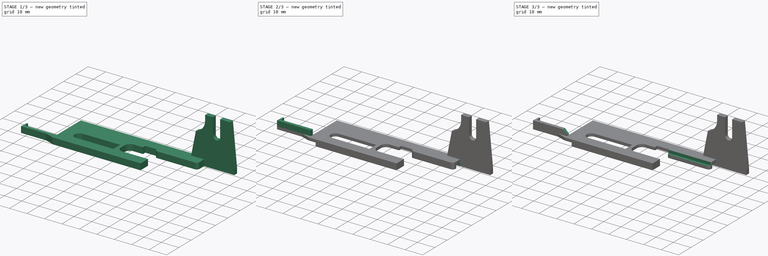
[diagram: build sequence overview — one tinted view per stage of 3, left to right]
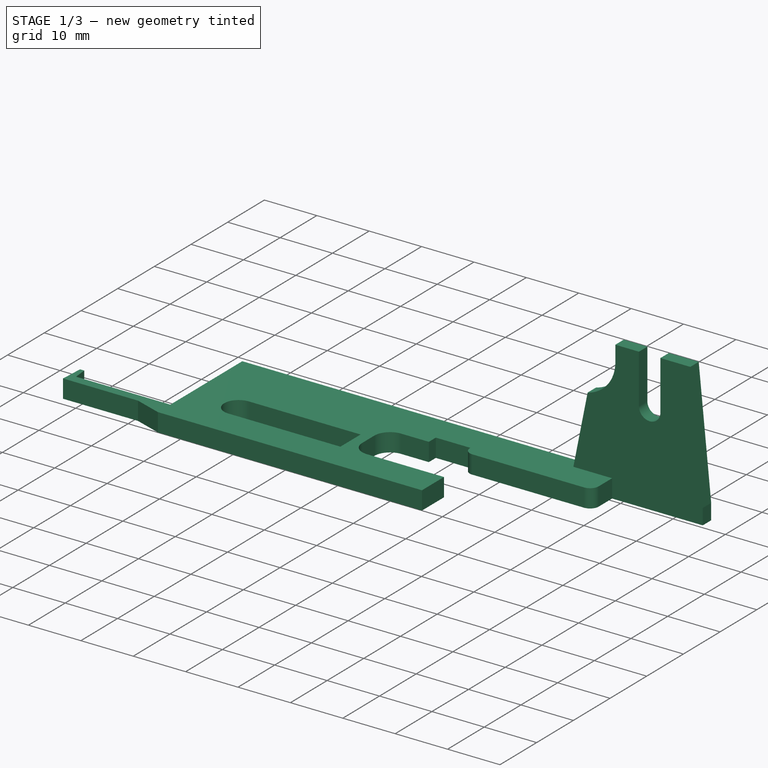
[diagram: stage 1 of 3 — iso view after this stage's code; geometry added in this stage tinted green]
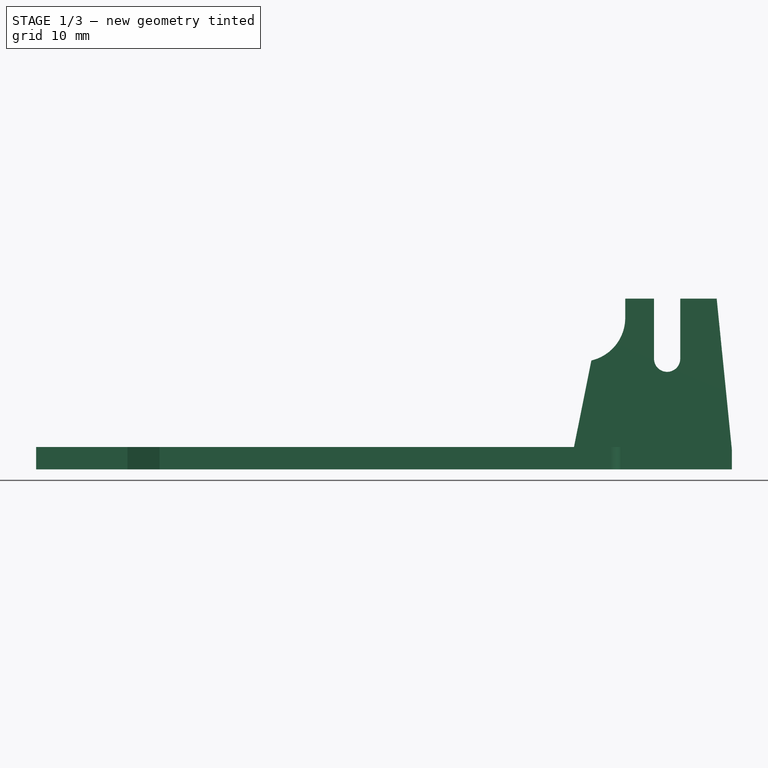
[diagram: stage 1 of 3 — front view after this stage's code; geometry added in this stage tinted green]
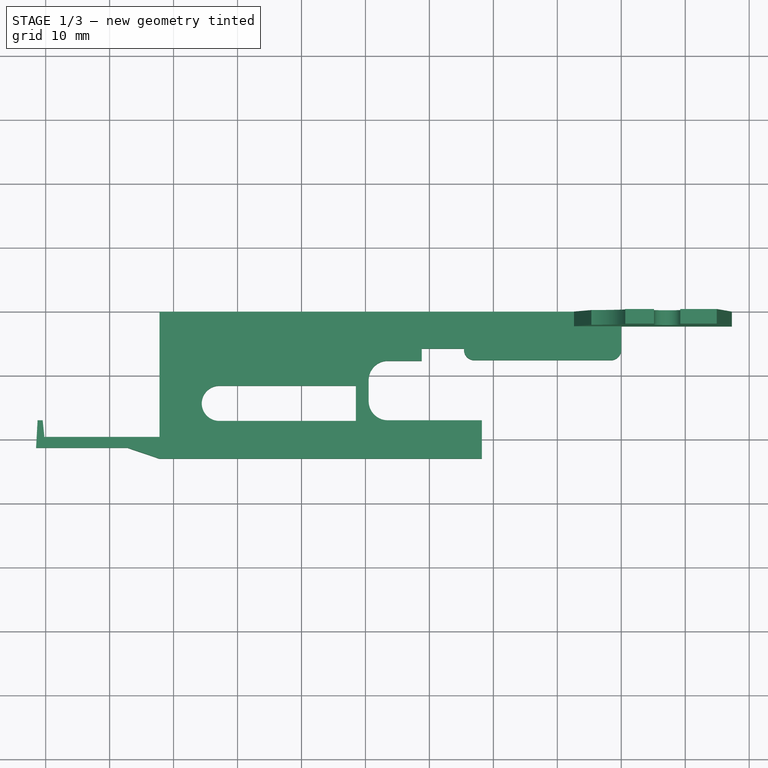
[diagram: stage 1 of 3 — top view after this stage's code; geometry added in this stage tinted green]
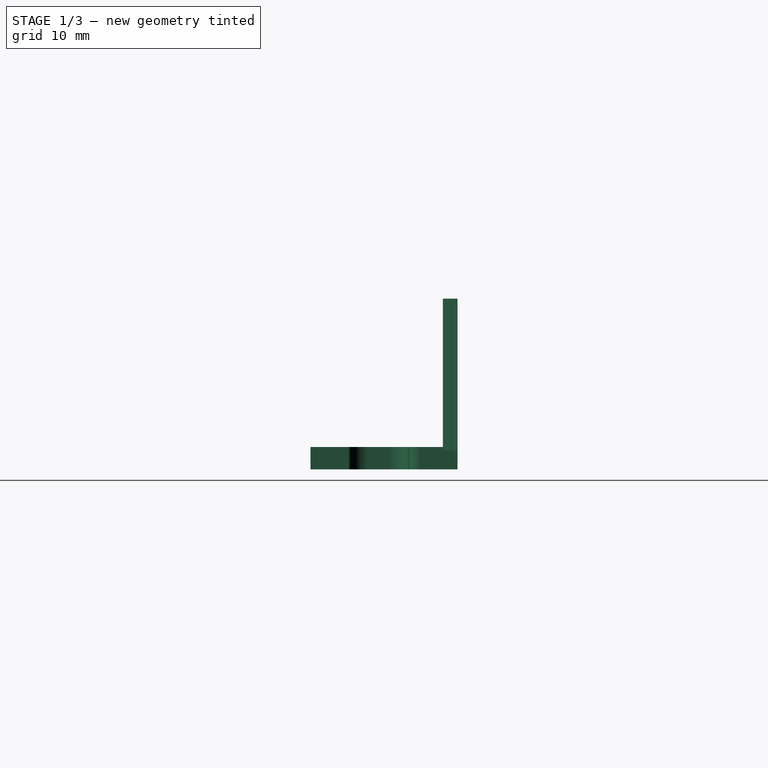
[diagram: stage 1 of 3 — right view after this stage's code; geometry added in this stage tinted green]
FCSTD DOCUMENT  (FreeCAD 0.19R23578 (Git))
Label: part1
License: All rights reserved
LicenseURL: http://en.wikipedia.org/wiki/All_rights_reserved
objects: Sketcher::SketchObject×5, PartDesign::Pad×3, PartDesign::Pocket×2, PartDesign::Chamfer×1, PartDesign::Body×1
note: 18 computed .brp shape members not serialized (recipe doc carries the construction recipe); baked Part::Feature solids carry a one-line shape summary decoded from their .brp

FEATURE [Sketcher::SketchObject] Sketch
  MapMode = 5
  Support = -> [XY_Plane]
  expr: Constraints[74] = 3.3 / 2
  expr: Constraints[73] = 3.3 / 2
  sketch-geometry (28):
    g0: LineSegment StartX=0 StartY=0 StartZ=0 EndX=-72.2 EndY=0 EndZ=0
    g1: LineSegment StartX=-72.2 StartY=0 StartZ=0 EndX=-72.2 EndY=-19.6 EndZ=0
    g2: LineSegment StartX=-72.2 StartY=-19.6 StartZ=0 EndX=-90.2076 EndY=-19.6 EndZ=0
    g3: LineSegment StartX=-91.2663 StartY=-17 StartZ=0 EndX=-91.5 EndY=-21.3 EndZ=0
    g4: LineSegment StartX=-91.5 StartY=-21.3 StartZ=0 EndX=-77.2 EndY=-21.3 EndZ=0
    g5: LineSegment StartX=-77.2 StartY=-21.3 StartZ=0 EndX=-72.2 EndY=-23 EndZ=0
    g6: LineSegment StartX=-72.2 StartY=-23 StartZ=0 EndX=-21.8 EndY=-23 EndZ=0
    g7: LineSegment StartX=-21.8 StartY=-23 StartZ=0 EndX=-21.8 EndY=-17 EndZ=0
    g8: LineSegment StartX=-21.8 StartY=-17 StartZ=0 EndX=-36.5 EndY=-17 EndZ=0
    g9: LineSegment StartX=-39.5 StartY=-14 StartZ=0 EndX=-39.5 EndY=-10.7 EndZ=0
    g10: LineSegment StartX=-36.5 StartY=-7.7 StartZ=0 EndX=-31.2 EndY=-7.7 EndZ=0
    g11: LineSegment StartX=-31.2 StartY=-7.7 StartZ=0 EndX=-31.2 EndY=-5.8 EndZ=0
    g12: LineSegment StartX=-31.2 StartY=-5.8 StartZ=0 EndX=-24.6 EndY=-5.8 EndZ=0
    g13: LineSegment StartX=-24.6 StartY=-5.8 StartZ=0 EndX=-24.6 EndY=-5.95 EndZ=0
    g14: LineSegment StartX=-22.95 StartY=-7.6 StartZ=0 EndX=-1.65 EndY=-7.6 EndZ=0
    g15: LineSegment StartX=0 StartY=-5.95 StartZ=0 EndX=0 EndY=0 EndZ=0
    g16: ArcOfCircle CenterX=-36.5 CenterY=-14 CenterZ=0 NormalX=0 NormalY=0 NormalZ=1 AngleXU=0 Radius=3 StartAngle=3.14159 EndAngle=4.71239
    g17: ArcOfCircle CenterX=-36.5 CenterY=-10.7 CenterZ=0 NormalX=0 NormalY=0 NormalZ=1 AngleXU=0 Radius=3 StartAngle=1.5708 EndAngle=3.14159
    g18: ArcOfCircle CenterX=-22.95 CenterY=-5.95 CenterZ=0 NormalX=0 NormalY=0 NormalZ=1 AngleXU=0 Radius=1.65 StartAngle=3.14159 EndAngle=4.71239
    g19: ArcOfCircle CenterX=-1.65 CenterY=-5.95 CenterZ=0 NormalX=0 NormalY=0 NormalZ=1 AngleXU=0 Radius=1.65 StartAngle=4.71239 EndAngle=6.28319
    g20: GeomPoint X=-91.4076 Y=-19.6 Z=0
    g21: LineSegment StartX=-90.2076 StartY=-19.6 StartZ=0 EndX=-90.4663 EndY=-17 EndZ=0
    g22: LineSegment StartX=-90.4663 StartY=-17 StartZ=0 EndX=-91.2663 EndY=-17 EndZ=0
    g23: ArcOfCircle CenterX=-62.85 CenterY=-14.35 CenterZ=0 NormalX=0 NormalY=0 NormalZ=1 AngleXU=0 Radius=2.75 StartAngle=1.5708 EndAngle=4.71239
    g24: LineSegment StartX=-62.85 StartY=-11.6 StartZ=0 EndX=-41.5 EndY=-11.6 EndZ=0
    g25: LineSegment StartX=-41.5 StartY=-11.6 StartZ=0 EndX=-41.5 EndY=-17.1 EndZ=0
    g26: LineSegment StartX=-62.85 StartY=-17.1 StartZ=0 EndX=-41.5 EndY=-17.1 EndZ=0
    g27: GeomPoint X=-65.6 Y=-14.35 Z=0
  constraints (75):
    c: Coincident(g-1,g0)
    c: PointOnObject(g0,g-1)
    c: Coincident(g0,g1)
    c: Vertical(g1)
    c: Coincident(g1,g2)
    c: Horizontal(g2)
    c: Coincident(g3,g4)
    c: Horizontal(g4)
    c: Coincident(g4,g5)
    c: Coincident(g5,g6)
    c: Horizontal(g6)
    c: Coincident(g6,g7)
    c: Vertical(g7)
    c: Coincident(g7,g8)
    c: Horizontal(g8)
    c: Vertical(g9)
    c: Horizontal(g10)
    c: Coincident(g10,g11)
    c: Coincident(g11,g12)
    c: Horizontal(g12)
    c: Coincident(g12,g13)
    c: Horizontal(g14)
    c: Coincident(g15,g0)
    c: DistanceX(g0,g0) = 72.2
    c: Vertical(g11)
    c: Vertical(g13)
    c: DistanceY(g12,g0) = 5.8
    c: Tangent(g9,g16) = 1.5708
    c: Tangent(g8,g16) = 1.5708
    c: Tangent(g10,g17) = 1.5708
    c: Tangent(g9,g17) = 1.5708
    c: Tangent(g13,g18) = -1.5708
    c: Tangent(g14,g18) = -1.5708
    c: Tangent(g15,g19) = -1.5708
    c: Tangent(g14,g19) = -1.5708
    c: DistanceX(g0,g9) = 32.7
    c: DistanceX(g0,g11) = 41
    c: DistanceX(g11,g12) = 6.6
    c: PointOnObject(g15,g-2)
    c: DistanceY(g10,g-1) = 7.7
    c: DistanceY(g14,g-1) = 7.6
    c: DistanceY(g1,g-1) = 19.6
    c: DistanceY(g6,g-1) = 23
    c: DistanceY(g3,g3) = 4.3
    c: DistanceY(g3,g2) = 1.7
    c: DistanceX(g3,g6) = 69.7
    c: Vertical(g5,g1)
    c: DistanceX(g1,g7) = 50.4
    c: PointOnObject(g20,g3)
    c: Horizontal(g20,g2)
    c: DistanceX(g20,g2) = 1.2
    c: Coincident(g2,g21)
    c: Coincident(g21,g22)
    c: Coincident(g22,g3)
    c: Horizontal(g22)
    c: DistanceX(g3,g21) = 0.8
    c: DistanceX(g4,g5) = 5
    c: Radius(g16) = 3
    c: Equal(g16,g17)
    c: Tangent(g23,g24) = 1.5708
    c: Coincident(g24,g25)
    c: Vertical(g25)
    c: Tangent(g23,g26) = -1.5708
    c: Coincident(g25,g26)
    c: Horizontal(g26)
    c: Horizontal(g24)
    c: DistanceY(g25,g24) = 5.5
    c: PointOnObject(g27,g23)
    c: Horizontal(g27,g23)
    c: DistanceX(g27,g24) = 24.1
    c: DistanceX(g0,g27) = 6.6
    c: DistanceY(g23,g0) = 11.6
    c: DistanceY(g6,g7) = 6
    c: Radius(g18) = 1.65
    c: Radius(g19) = 1.65
FEATURE [PartDesign::Pad] Pad
  Direction = (1,1,1)
  Length = 3.5
  Length2 = 100
  Profile = -> Sketch
  Type = 0
FEATURE [Sketcher::SketchObject] Sketch001
  ExternalGeometry = -> [Pad]
  MapMode = 5
  Placement = pos=(0,0,0) rot=(0,0.707107,0.707107;3.14159rad)
  Support = -> [Pad]
  sketch-geometry (12):
    g0: LineSegment StartX=8.09889 StartY=0 StartZ=0 EndX=4.67387 EndY=17.0291 EndZ=0
    g1: ArcOfCircle CenterX=6.2303 CenterY=23.7 CenterZ=0 NormalX=0 NormalY=0 NormalZ=1 AngleXU=0 Radius=6.85009 StartAngle=3.14159 EndAngle=4.48317
    g2: ArcOfCircle CenterX=-7.16979 CenterY=17.3 CenterZ=0 NormalX=0 NormalY=0 NormalZ=1 AngleXU=0 Radius=2.05 StartAngle=3.14159 EndAngle=6.28319
    g3: LineSegment StartX=-5.11979 StartY=17.3 StartZ=0 EndX=-5.11979 EndY=26.7 EndZ=0
    g4: LineSegment StartX=-5.11979 StartY=26.7 StartZ=0 EndX=-0.61979 EndY=26.7 EndZ=0
    g5: LineSegment StartX=-0.61979 StartY=26.7 StartZ=0 EndX=-0.61979 EndY=23.7 EndZ=0
    g6: LineSegment StartX=-9.21979 StartY=17.3 StartZ=0 EndX=-9.21979 EndY=26.7 EndZ=0
    g7: LineSegment StartX=-9.21979 StartY=26.7 StartZ=0 EndX=-14.9198 EndY=26.7 EndZ=0
    g8: LineSegment StartX=-14.9198 StartY=26.7 StartZ=0 EndX=-17.3 EndY=3 EndZ=0
    g9: LineSegment StartX=-17.3 StartY=3 StartZ=0 EndX=-17.3 EndY=0 EndZ=0
    g10: LineSegment StartX=-17.3 StartY=0 StartZ=0 EndX=8.09889 EndY=0 EndZ=0
    g11: GeomPoint X=7.39494 Y=3.5 Z=0
  constraints (34):
    c: PointOnObject(g0,g-1)
    c: Coincident(g1,g0)
    c: Tangent(g2,g3) = -1.5708
    c: Coincident(g3,g4)
    c: Horizontal(g4)
    c: Coincident(g4,g5)
    c: Vertical(g5)
    c: Tangent(g2,g6) = 1.5708
    c: Coincident(g6,g7)
    c: Horizontal(g7)
    c: Coincident(g7,g8)
    c: Coincident(g8,g9)
    c: PointOnObject(g9,g-1)
    c: Vertical(g9)
    c: Coincident(g9,g10)
    c: Coincident(g10,g0)
    c: Vertical(g3)
    c: Vertical(g6)
    c: DistanceX(g3,g4) = 4.5
    c: DistanceX(g7,g6) = 5.7
    c: DistanceX(g6,g3) = 4.1
    c: DistanceY(g2,g3) = 9.4
    c: Horizontal(g3,g6)
    c: DistanceY(g9,g9) = 3
    c: PointOnObject(g11,g0)
    c: PointOnObject(g11,g-3)
    c: Distance(g8,g11) = 24.7
    c: DistanceY(g9,g7) = 26.7
    c: DistanceX(g9,g-4) = 89.5
    c: Distance(g3,g-4) = 81.8
    c: Distance(g0,g11) = 13.8
    c: Tangent(g5,g1) = -1.5708
    c: Distance(g9,g0) = 27.8
    c: DistanceY(g1,g4) = 3
FEATURE [PartDesign::Pad] Pad001
  BaseFeature = -> Pad
  Direction = (1,1,1)
  Length = 2.3
  Length2 = 100
  Profile = -> Sketch001
  Reversed = true
  Type = 0
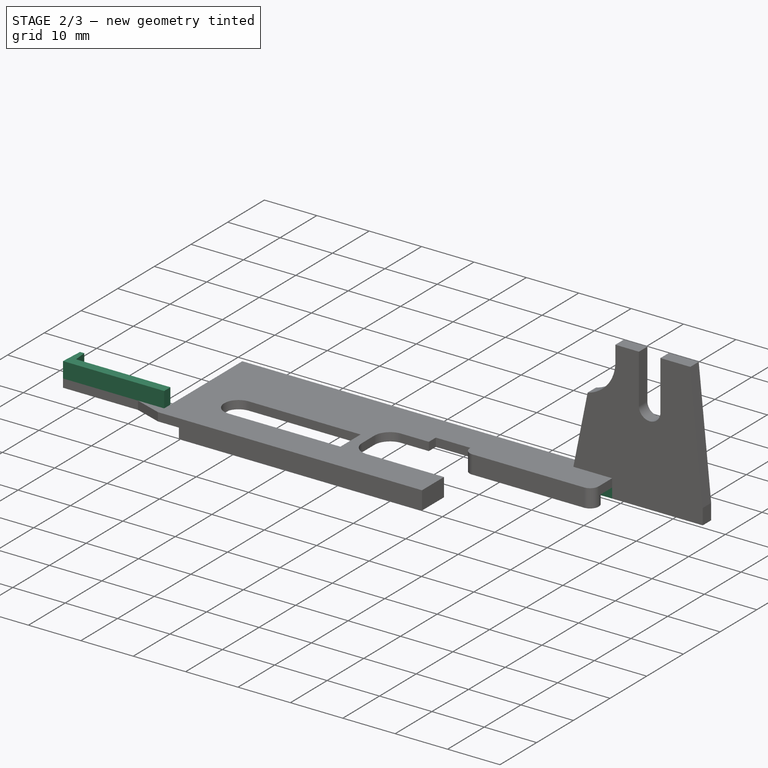
[diagram: stage 2 of 3 — iso view after this stage's code; geometry added in this stage tinted green]
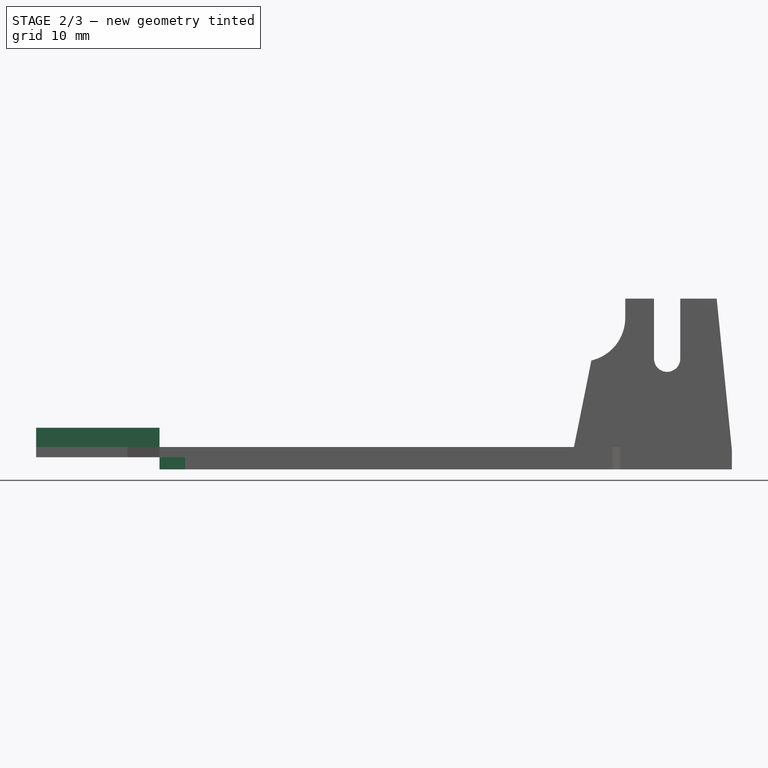
[diagram: stage 2 of 3 — front view after this stage's code; geometry added in this stage tinted green]
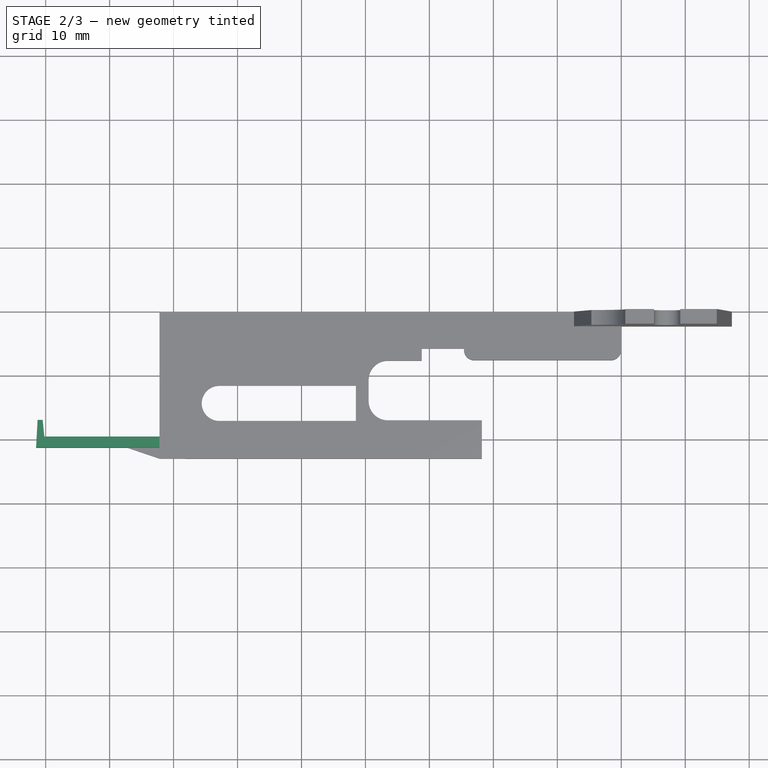
[diagram: stage 2 of 3 — top view after this stage's code; geometry added in this stage tinted green]
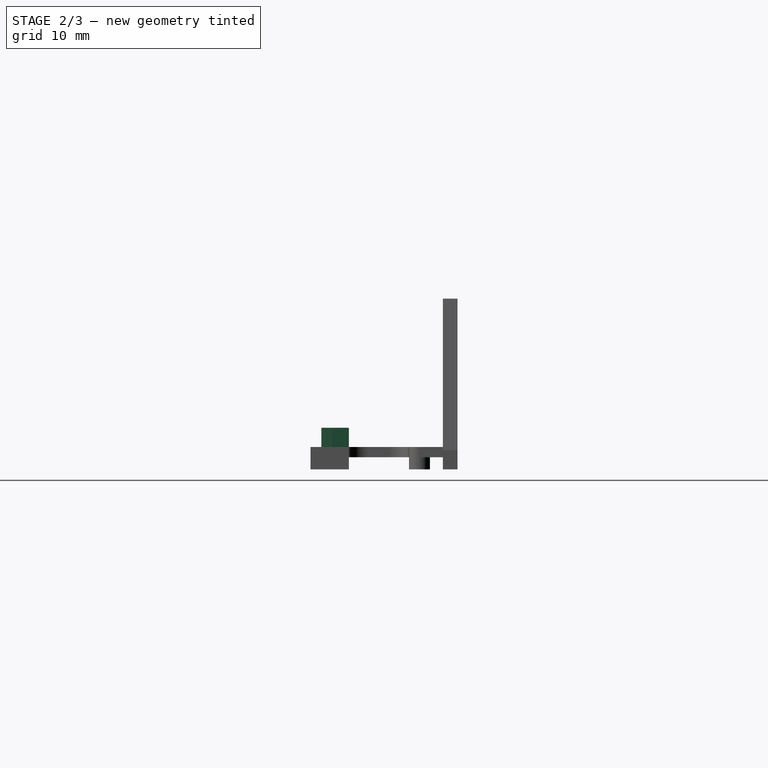
[diagram: stage 2 of 3 — right view after this stage's code; geometry added in this stage tinted green]
FEATURE [Sketcher::SketchObject] Sketch002
  ExternalGeometry = -> [Pad001]
  MapMode = 5
  Placement = pos=(0,0,0) rot=(1,0,0;3.14159rad)
  Support = -> [Pad001]
  sketch-geometry (14):
    g0: LineSegment StartX=-68.1973 StartY=27.5309 StartZ=0 EndX=-68.1973 EndY=21 EndZ=0
    g1: LineSegment StartX=-68.1973 StartY=21 StartZ=0 EndX=-23.4 EndY=21 EndZ=0
    g2: LineSegment StartX=-23.4 StartY=21 StartZ=0 EndX=-23.4 EndY=19 EndZ=0
    g3: LineSegment StartX=-23.4 StartY=19 StartZ=0 EndX=-32 EndY=19 EndZ=0
    g4: LineSegment StartX=-32 StartY=19 StartZ=0 EndX=-32 EndY=13.8446 EndZ=0
    g5: LineSegment StartX=-32 StartY=13.8446 StartZ=0 EndX=-24.6 EndY=13.8446 EndZ=0
    g6: LineSegment StartX=-24.6 StartY=13.8446 StartZ=0 EndX=-24.6 EndY=5.95 EndZ=0
    g7: LineSegment StartX=-22.95 StartY=4.3 StartZ=0 EndX=-1.65 EndY=4.3 EndZ=0
    g8: LineSegment StartX=0 StartY=2.3 StartZ=0 EndX=-94.7647 EndY=2.3 EndZ=0
    g9: LineSegment StartX=-94.7647 StartY=2.3 StartZ=0 EndX=-94.7647 EndY=27.5309 EndZ=0
    g10: LineSegment StartX=-94.7647 StartY=27.5309 StartZ=0 EndX=-68.1973 EndY=27.5309 EndZ=0
    g11: ArcOfCircle CenterX=-22.95 CenterY=5.95 CenterZ=0 NormalX=0 NormalY=0 NormalZ=1 AngleXU=0 Radius=1.65 StartAngle=3.14159 EndAngle=4.71239
    g12: ArcOfCircle CenterX=-1.65 CenterY=5.95 CenterZ=0 NormalX=0 NormalY=0 NormalZ=1 AngleXU=0 Radius=1.65 StartAngle=4.71239 EndAngle=6.28319
    g13: LineSegment StartX=0 StartY=5.95 StartZ=0 EndX=0 EndY=2.3 EndZ=0
  constraints (36):
    c: Vertical(g0)
    c: Coincident(g0,g1)
    c: Horizontal(g1)
    c: Coincident(g1,g2)
    c: Vertical(g2)
    c: Coincident(g2,g3)
    c: Horizontal(g3)
    c: Coincident(g3,g4)
    c: Vertical(g4)
    c: Coincident(g4,g5)
    c: Horizontal(g5)
    c: Coincident(g5,g6)
    c: Vertical(g6)
    c: Horizontal(g7)
    c: PointOnObject(g12,g-2)
    c: Horizontal(g8)
    c: Coincident(g8,g9)
    c: Vertical(g9)
    c: Coincident(g9,g10)
    c: Coincident(g10,g0)
    c: Horizontal(g10)
    c: DistanceY(g1,g-4) = 2
    c: DistanceY(g-5,g2) = 2
    c: DistanceX(g3,g-4) = 10.2
    c: Tangent(g6,g11) = -1.5708
    c: Tangent(g7,g11) = -1.5708
    c: Tangent(g7,g12) = -1.5708
    c: DistanceY(g7,g-6) = 3.3
    c: Vertical(g-6,g11)
    c: Vertical(g-6,g12)
    c: Diameter(g12) = 3.3
    c: Diameter(g11) = 3.3
    c: Coincident(g8,g-3)
    c: Coincident(g13,g12)
    c: Coincident(g13,g8)
    c: DistanceX(g1,g-4) = 1.6
FEATURE [PartDesign::Pocket] Pocket
  BaseFeature = -> Pad001
  Length = 1.9
  Length2 = 100
  Profile = -> Sketch002
  Type = 0
FEATURE [Sketcher::SketchObject] Sketch003
  ExternalGeometry = -> [Pocket]
  MapMode = 5
  Placement = pos=(0,0,3.5) rot=(0,0,1;0rad)
  Support = -> [Pocket]
  sketch-geometry (6):
    g0: LineSegment StartX=-72.2 StartY=-19.6 StartZ=0 EndX=-90.2076 EndY=-19.6 EndZ=0
    g1: LineSegment StartX=-90.2076 StartY=-19.6 StartZ=0 EndX=-90.4663 EndY=-17 EndZ=0
    g2: LineSegment StartX=-90.4663 StartY=-17 StartZ=0 EndX=-91.2663 EndY=-17 EndZ=0
    g3: LineSegment StartX=-91.2663 StartY=-17 StartZ=0 EndX=-91.5 EndY=-21.3 EndZ=0
    g4: LineSegment StartX=-91.5 StartY=-21.3 StartZ=0 EndX=-72.2 EndY=-21.3 EndZ=0
    g5: LineSegment StartX=-72.2 StartY=-21.3 StartZ=0 EndX=-72.2 EndY=-19.6 EndZ=0
  constraints (13):
    c: Coincident(g0,g-5)
    c: Coincident(g0,g1)
    c: Coincident(g1,g-5)
    c: Coincident(g1,g2)
    c: Coincident(g2,g-4)
    c: Coincident(g2,g3)
    c: Coincident(g3,g-3)
    c: Coincident(g3,g4)
    c: Coincident(g4,g5)
    c: Coincident(g5,g0)
    c: Vertical(g5)
    c: Horizontal(g4)
    c: Coincident(g0,g-7)
FEATURE [PartDesign::Pad] Pad002
  BaseFeature = -> Pocket
  Direction = (1,1,1)
  Length = 3
  Length2 = 100
  Profile = -> Sketch003
  Type = 0
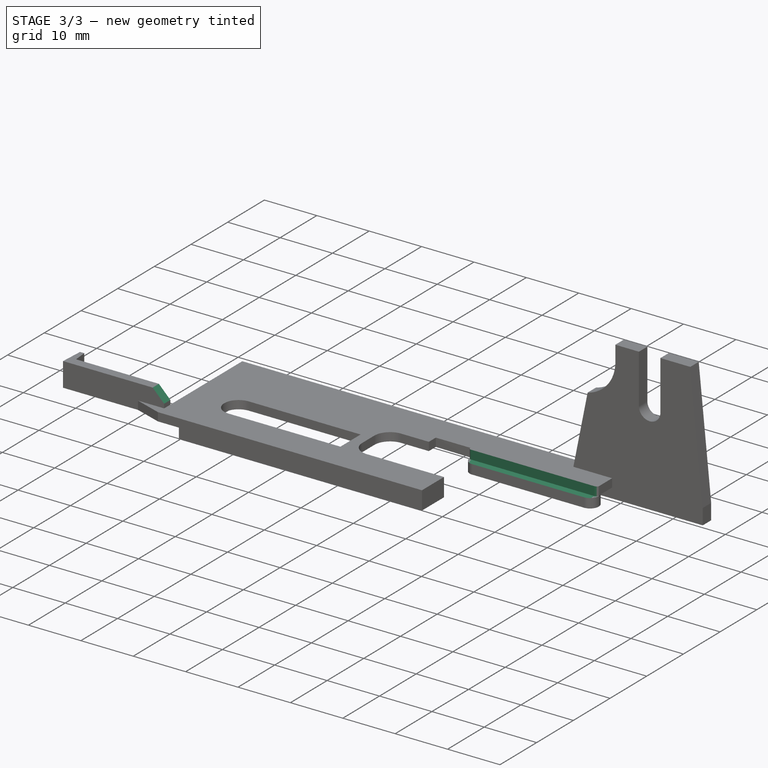
[diagram: stage 3 of 3 — iso view after this stage's code; geometry added in this stage tinted green]
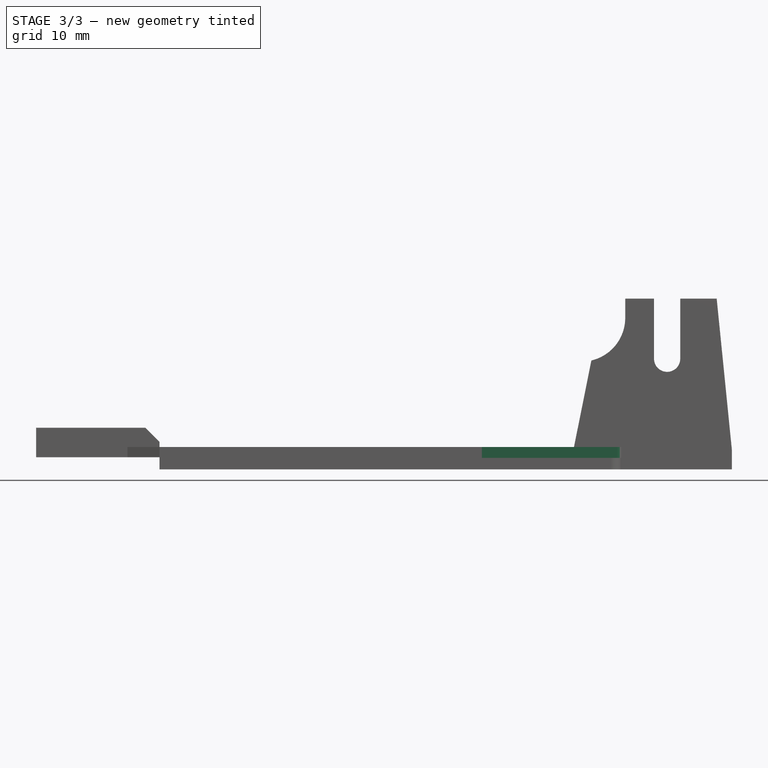
[diagram: stage 3 of 3 — front view after this stage's code; geometry added in this stage tinted green]
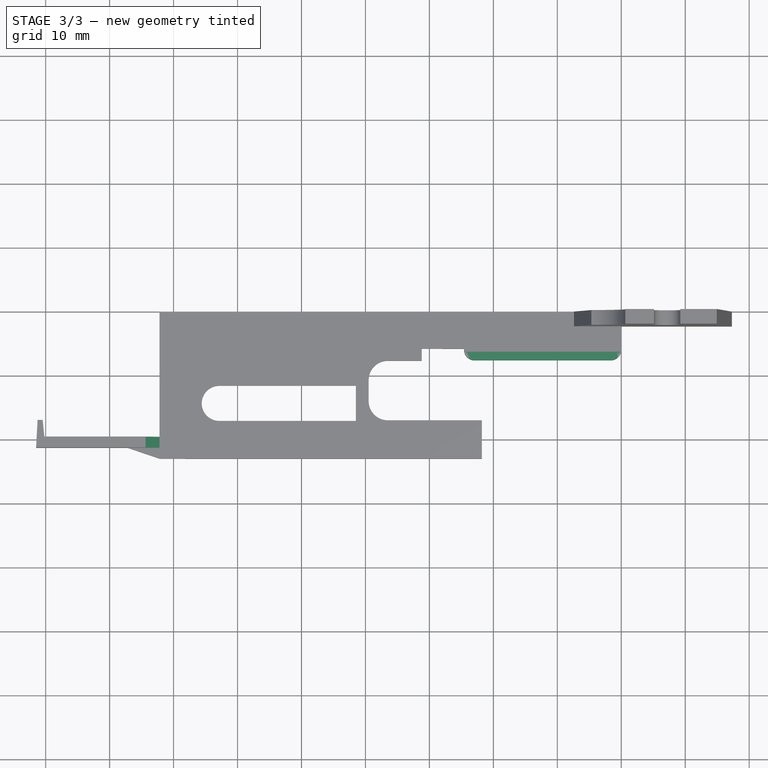
[diagram: stage 3 of 3 — top view after this stage's code; geometry added in this stage tinted green]
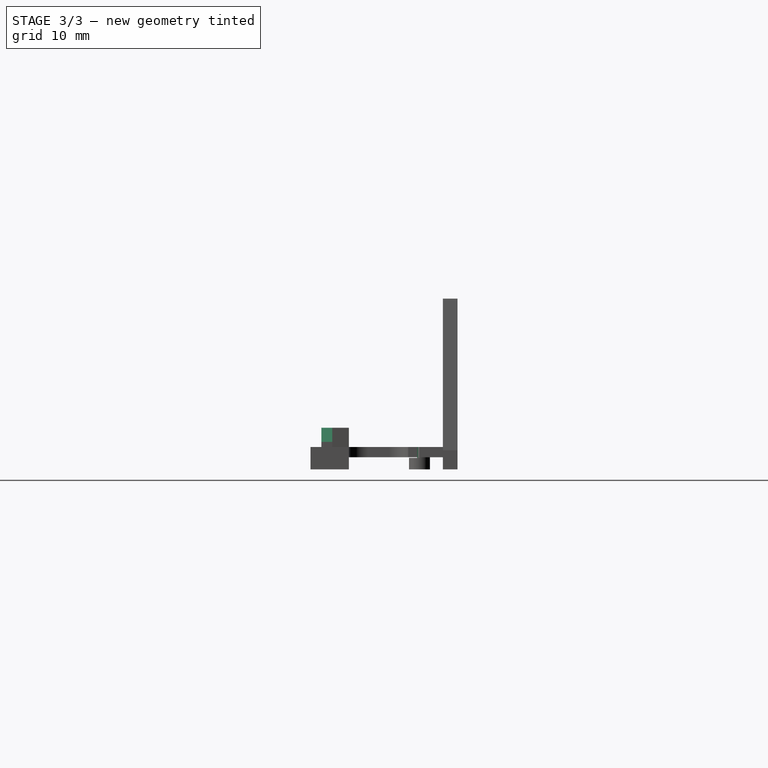
[diagram: stage 3 of 3 — right view after this stage's code; geometry added in this stage tinted green]
FEATURE [PartDesign::Chamfer] Chamfer
  Angle = 45
  Base = -> Pad002 [Edge115]
  BaseFeature = -> Pad002
  ChamferType = 0
  FlipDirection = false
  Size = 2.2
  Size2 = 1
  SupportTransform = false
FEATURE [Sketcher::SketchObject] Sketch004
  ExternalGeometry = -> [Chamfer]
  MapMode = 5
  Placement = pos=(0,0,3.5) rot=(0,0,1;0rad)
  Support = -> [Chamfer]
  sketch-geometry (6):
    g0: LineSegment StartX=-24.123 StartY=-6.3 StartZ=0 EndX=-0.643331 EndY=-6.3 EndZ=0
    g1: ArcOfCircle CenterX=-24.123 CenterY=-5.8225 CenterZ=0 NormalX=0 NormalY=0 NormalZ=1 AngleXU=0 Radius=0.4775 StartAngle=3.09446 EndAngle=4.71239
    g2: ArcOfCircle CenterX=-0.643331 CenterY=-5.53375 CenterZ=0 NormalX=0 NormalY=0 NormalZ=1 AngleXU=0 Radius=0.76625 StartAngle=4.71239 EndAngle=5.70891
    g3: LineSegment StartX=-24.6 StartY=-5.8 StartZ=0 EndX=-24.6 EndY=-8.44566 EndZ=0
    g4: LineSegment StartX=-24.6 StartY=-8.44566 StartZ=0 EndX=0 EndY=-8.44566 EndZ=0
    g5: LineSegment StartX=1e-16 StartY=-8.44566 StartZ=0 EndX=1e-16 EndY=-5.95 EndZ=0
  constraints (13):
    c: Horizontal(g0)
    c: DistanceY(g-5,g0) = 1.3
    c: Tangent(g1,g0) = -1.5708
    c: Coincident(g1,g-3)
    c: Coincident(g2,g-5)
    c: Tangent(g2,g0) = -1.5708
    c: Coincident(g1,g3)
    c: Coincident(g3,g4)
    c: Horizontal(g4)
    c: Coincident(g4,g5)
    c: Vertical(g3)
    c: Vertical(g5)
    c: Coincident(g2,g5)
FEATURE [PartDesign::Pocket] Pocket001
  BaseFeature = -> Chamfer
  Length = 1.7
  Length2 = 100
  Profile = -> Sketch004
  Type = 0
FEATURE [PartDesign::Body] Body
  Group = -> [Sketch,Pad,Sketch001,Pad001,Sketch002,Pocket,Sketch003,Pad002,Chamfer,Sketch004,Pocket001]
  Origin = -> Origin
  Tip = -> Pocket001
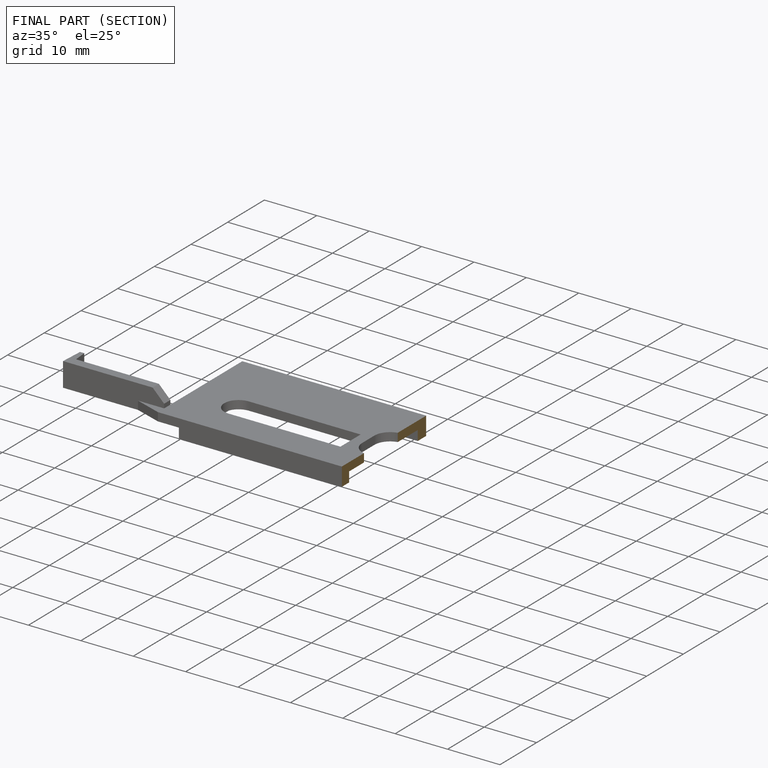
[diagram: finished part — half-section view (interior)]
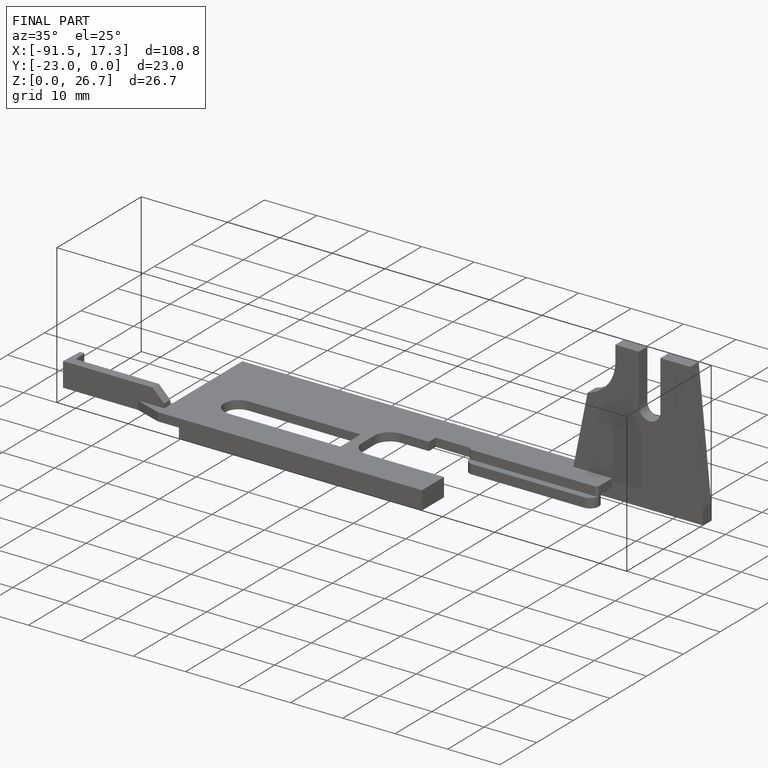
[diagram: finished part — iso view with bounding-box wireframe]
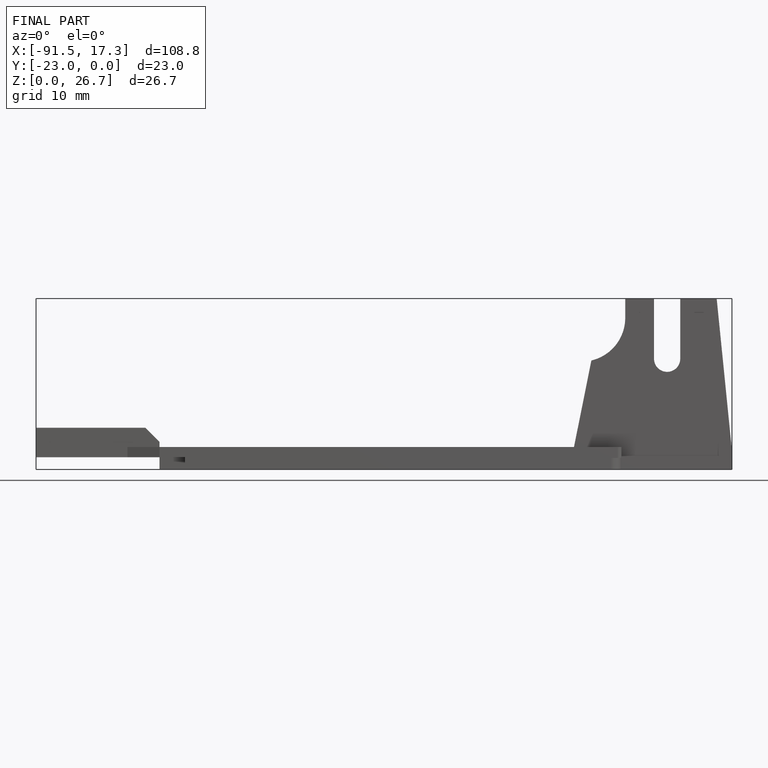
[diagram: finished part — front view with bounding-box wireframe]
